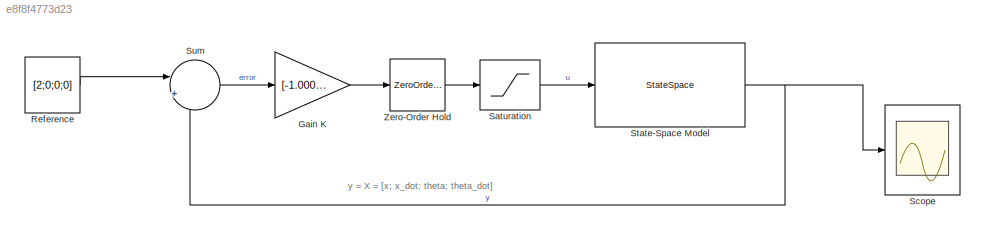
MODEL slx_e8f8f4773d23
KIND model
CONFIG AbsTol = auto
CONFIG EnableMultiTasking = off
CONFIG FixedStep = auto
CONFIG MaxStep = auto
CONFIG MinStep = auto
CONFIG RelTol = 1e-3
CONFIG SampleTimeConstraint = Unconstrained
CONFIG Solver = VariableStepAuto
CONFIG SolverName = VariableStepAuto
CONFIG StartTime = 0.0
CONFIG StopTime = 10
BLOCK [Gain] Gain K 
  Gain = [-1.0000   -1.8497  -66.8128  -14.5675]
  Multiplication = Matrix(K*u) (u vector)
  OutDataTypeStr = Inherit: Inherit via internal rule
  ParamDataTypeStr = Inherit: Inherit via internal rule
  SaturateOnIntegerOverflow = off
BLOCK [Constant] Reference
  Value = [2;0;0;0]
BLOCK [Saturate] Saturation
  InputPortMap = u0
  LowerLimit = -0.8
  Ports = [1, 1]
  UpperLimit = 0.9
BLOCK [Scope] Scope
  NumInputPorts = 1
  Ports = [1]
  ScopeSpecificationString = Simulink.scopes.TimeScopeBlockCfg('CurrentConfiguration', extmgr.ConfigurationSet(extmgr.Configuration('Core','General UI',true),extmgr.Configuration('Core','Source UI',true),extmgr.Configuration('Sources','WiredSimulink',true,'DataLoggingVariableName','ScopeData1'),extmgr.Configuration('Visuals','Time Domain',true,'SerializedDisplays',{struct('MinYLimReal','-1.45096','MaxYLimReal','4.58903','YLab...<+1513ch>
BLOCK [StateSpace] State-Space Model
  A = [0    1.0000         0         0;\n         0  -10.4100         0         0;\n         0         0         0    1.0000;\n         0    4.3111   36.7400   -0.6249]
  B = [0;\n   51.2860;\n         0;\n  -21.0230]
  C = eye(4)
  D = [0;0;0;0]
  Ports = [1, 1]
  X0 = [1; 0; 0; 1]
BLOCK [Sum] Sum
  IconShape = round
  InputSameDT = off
  Inputs = |+-
  OutDataTypeStr = Inherit: Inherit via internal rule
  Ports = [2, 1]
  SaturateOnIntegerOverflow = off
BLOCK [ZeroOrderHold] Zero-Order Hold
  SampleTime = 0.01
ANNOTATION (root): y = X = [x; x_dot; theta; theta_dot]
LINE Gain K :1 -> Zero-Order Hold:1
LINE Reference:1 -> Sum:1
LINE Saturation:1 -> State-Space Model:1
NET State-Space Model:1 -> Scope:1, Sum:2
LINE Sum:1 -> Gain K :1
LINE Zero-Order Hold:1 -> Saturation:1
note: NET lines group one-source signal fan-out (src -> all destinations, sorted); 1:1 wires keep LINE
